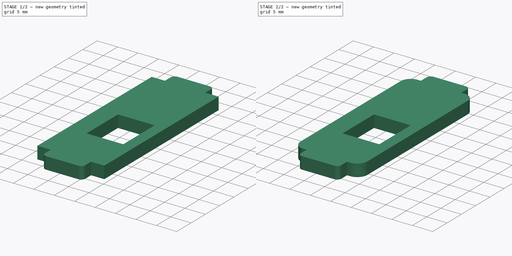
[diagram: build sequence overview — one tinted view per stage of 2, left to right]
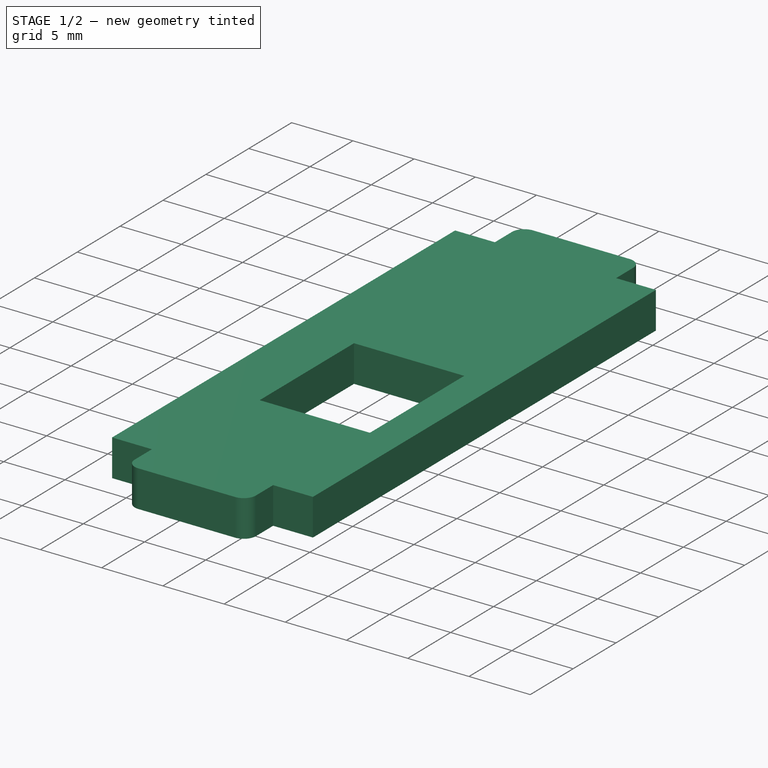
[diagram: stage 1 of 2 — iso view after this stage's code; geometry added in this stage tinted green]
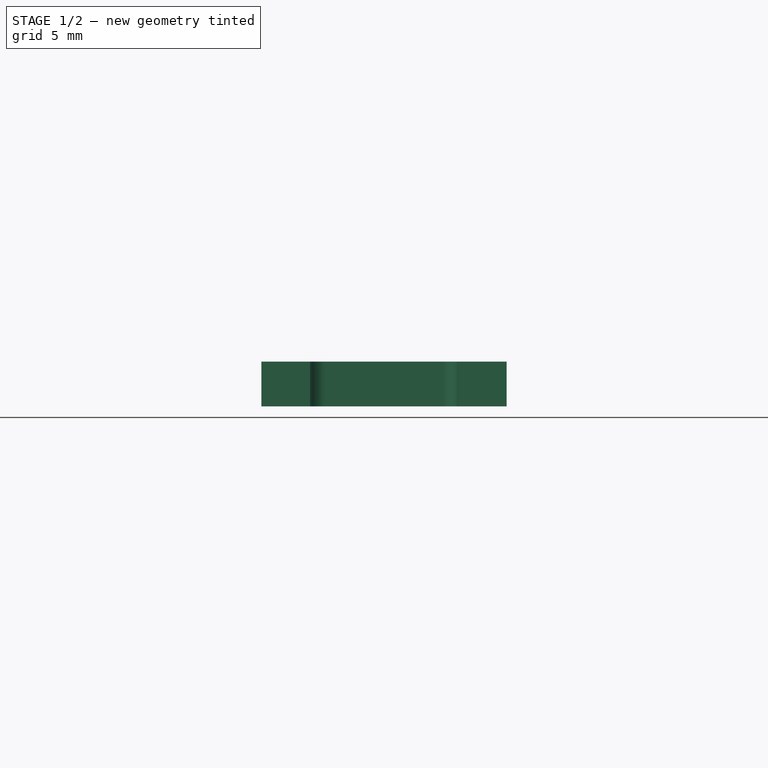
[diagram: stage 1 of 2 — front view after this stage's code; geometry added in this stage tinted green]
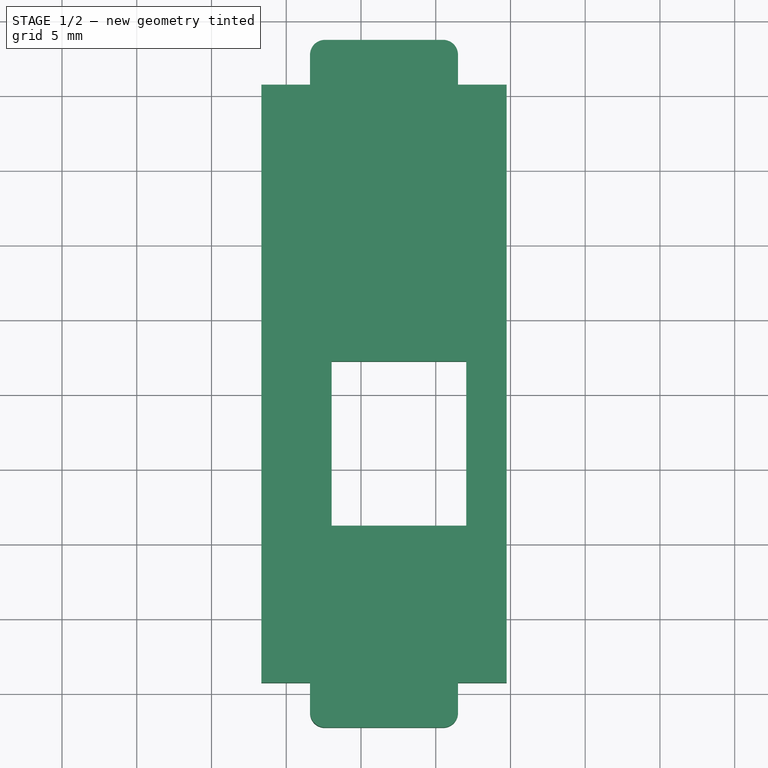
[diagram: stage 1 of 2 — top view after this stage's code; geometry added in this stage tinted green]
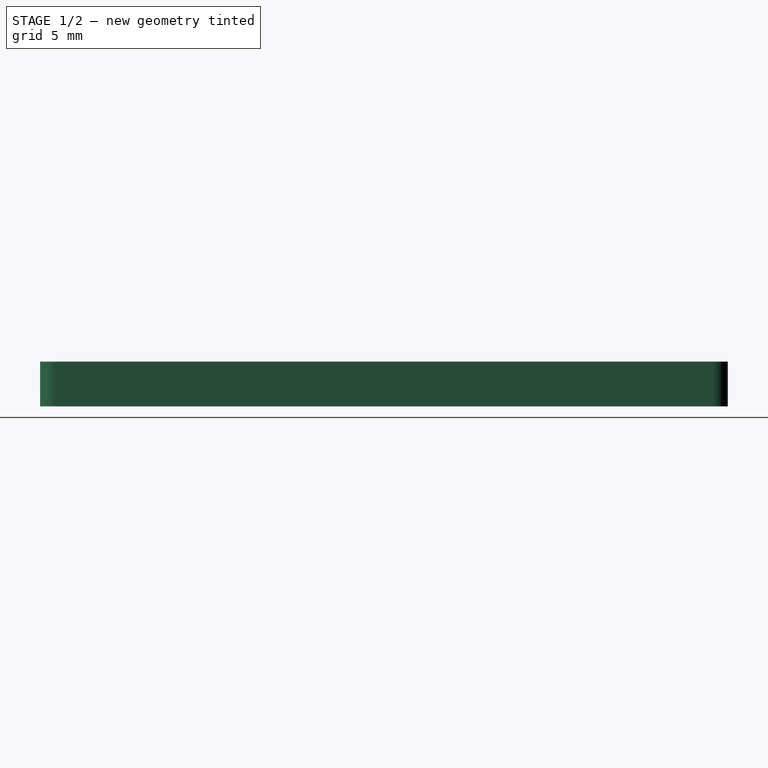
[diagram: stage 1 of 2 — right view after this stage's code; geometry added in this stage tinted green]
FCSTD DOCUMENT
Label: weather_kit_side_right2
objects: Part::Fillet×2, Sketcher::SketchObject×1, PartDesign::Pad×1, Drawing::FeatureViewPart×1, Drawing::FeaturePage×1
note: 5 computed .brp shape members not serialized (recipe doc carries the construction recipe); baked Part::Feature solids carry a one-line shape summary decoded from their .brp

FEATURE [Sketcher::SketchObject] Sketch
  sketch-geometry (16):
    g0: LineSegment StartX=39.7402 StartY=35.7314 StartZ=0 EndX=39.7402 EndY=-4.26859 EndZ=0
    g1: LineSegment StartX=26.5902 StartY=38.7314 StartZ=0 EndX=36.4902 EndY=38.7314 EndZ=0
    g2: LineSegment StartX=36.4902 StartY=38.7314 StartZ=0 EndX=36.4902 EndY=35.7314 EndZ=0
    g3: LineSegment StartX=26.5902 StartY=35.7314 StartZ=0 EndX=26.5902 EndY=38.7314 EndZ=0
    g4: LineSegment StartX=36.4902 StartY=-4.26859 StartZ=0 EndX=36.4902 EndY=-7.26859 EndZ=0
    g5: LineSegment StartX=36.4902 StartY=-7.26859 StartZ=0 EndX=26.5902 EndY=-7.26859 EndZ=0
    g6: LineSegment StartX=26.5902 StartY=-7.26859 StartZ=0 EndX=26.5902 EndY=-4.26859 EndZ=0
    g7: LineSegment StartX=26.5902 StartY=-4.26859 StartZ=0 EndX=23.3402 EndY=-4.26859 EndZ=0
    g8: LineSegment StartX=36.4902 StartY=-4.26859 StartZ=0 EndX=39.7402 EndY=-4.26859 EndZ=0
    g9: LineSegment StartX=36.4902 StartY=35.7314 StartZ=0 EndX=39.7402 EndY=35.7314 EndZ=0
    g10: LineSegment StartX=23.3402 StartY=35.7314 StartZ=0 EndX=26.5902 EndY=35.7314 EndZ=0
    g11: LineSegment StartX=23.3402 StartY=-4.26859 StartZ=0 EndX=23.3402 EndY=35.7314 EndZ=0
    g12: LineSegment StartX=28.0402 StartY=17.2314 StartZ=0 EndX=37.0402 EndY=17.2314 EndZ=0
    g13: LineSegment StartX=37.0402 StartY=17.2314 StartZ=0 EndX=37.0402 EndY=6.23141 EndZ=0
    g14: LineSegment StartX=37.0402 StartY=6.23141 StartZ=0 EndX=28.0402 EndY=6.23141 EndZ=0
    g15: LineSegment StartX=28.0402 StartY=6.23141 StartZ=0 EndX=28.0402 EndY=17.2314 EndZ=0
  constraints (46):
    c: Vertical(g0)
    c: DistanceY(g0) = -40
    c: Coincident(g1,g2)
    c: Coincident(g3,g1)
    c: Horizontal(g1)
    c: Vertical(g2)
    c: Vertical(g3)
    c: Coincident(g4,g5)
    c: Coincident(g5,g6)
    c: Horizontal(g5)
    c: Vertical(g4)
    c: Vertical(g6)
    c: DistanceY(g4) = -3
    c: DistanceY(g2) = -3
    c: DistanceX(g1) = 9.9
    c: DistanceX(g5) = -9.9
    c: DistanceY(g6,g0) = 0
    c: DistanceY(g2,g0) = 0
    c: DistanceX(g2,g0) = 3.25
    c: DistanceX(g0,g4) = -3.25
    c: Coincident(g7,g6)
    c: Horizontal(g7)
    c: Coincident(g8,g4)
    c: Coincident(g8,g0)
    c: Horizontal(g8)
    c: Coincident(g9,g2)
    c: Coincident(g9,g0)
    c: Coincident(g10,g3)
    c: Horizontal(g10)
    c: DistanceX(g7) = -3.25
    c: Coincident(g11,g7)
    c: Coincident(g11,g10)
    c: Vertical(g11)
    c: Coincident(g12,g13)
    c: Coincident(g13,g14)
    c: Coincident(g14,g15)
    c: Coincident(g15,g12)
    c: Horizontal(g12)
    c: Horizontal(g14)
    c: Vertical(g13)
    c: Vertical(g15)
    c: DistanceY(g13) = -11
    c: DistanceX(g12) = 9
    c: DistanceY(g0,g13) = 10.5
    c: DistanceX(g13,g0) = 2.7
    c: DistanceY(g11) = 40
FEATURE [PartDesign::Pad] Pad
  Length = 3
  Length2 = 100
  Sketch = -> Sketch
  Type = 0
FEATURE [Part::Fillet] Fillet
  Base = -> Pad
  Edges = 4 edges r=1: [Edge8,Edge11,Edge23,Edge26]
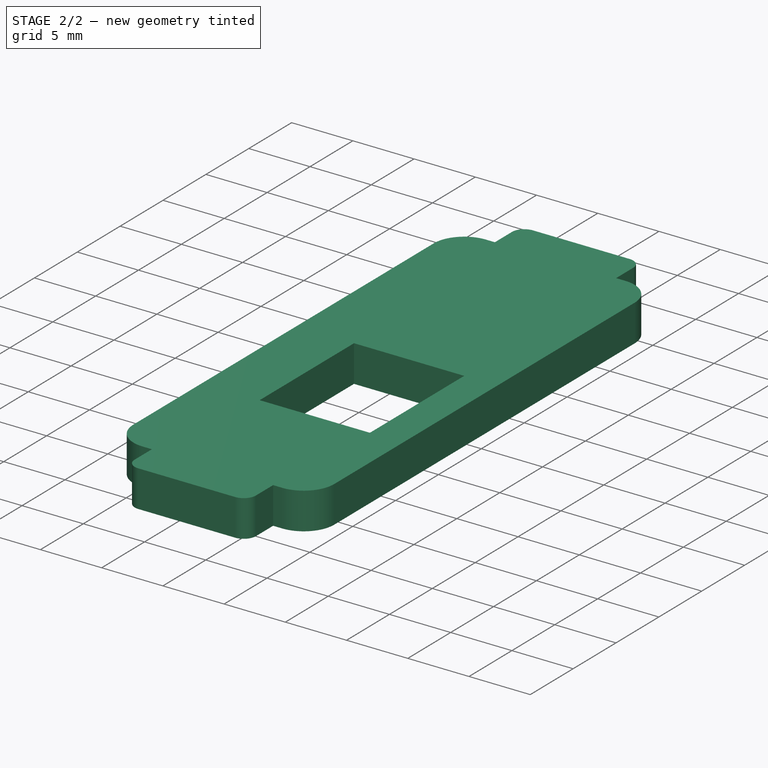
[diagram: stage 2 of 2 — iso view after this stage's code; geometry added in this stage tinted green]
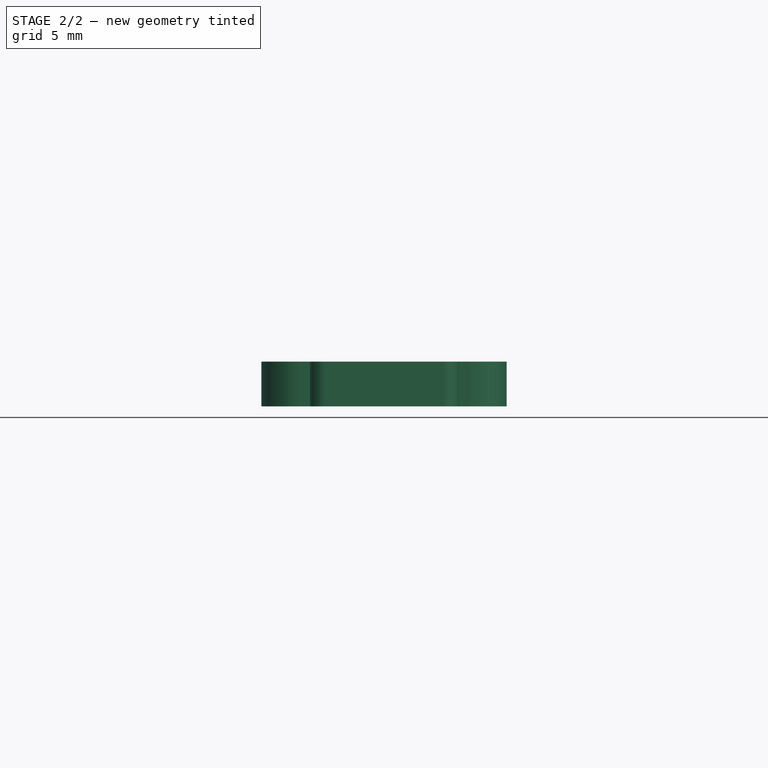
[diagram: stage 2 of 2 — front view after this stage's code; geometry added in this stage tinted green]
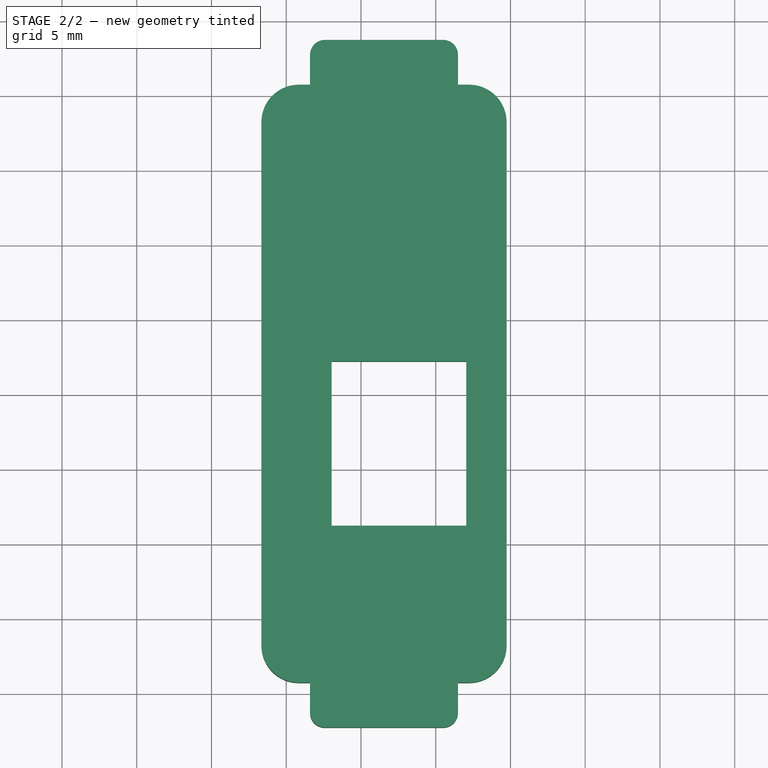
[diagram: stage 2 of 2 — top view after this stage's code; geometry added in this stage tinted green]
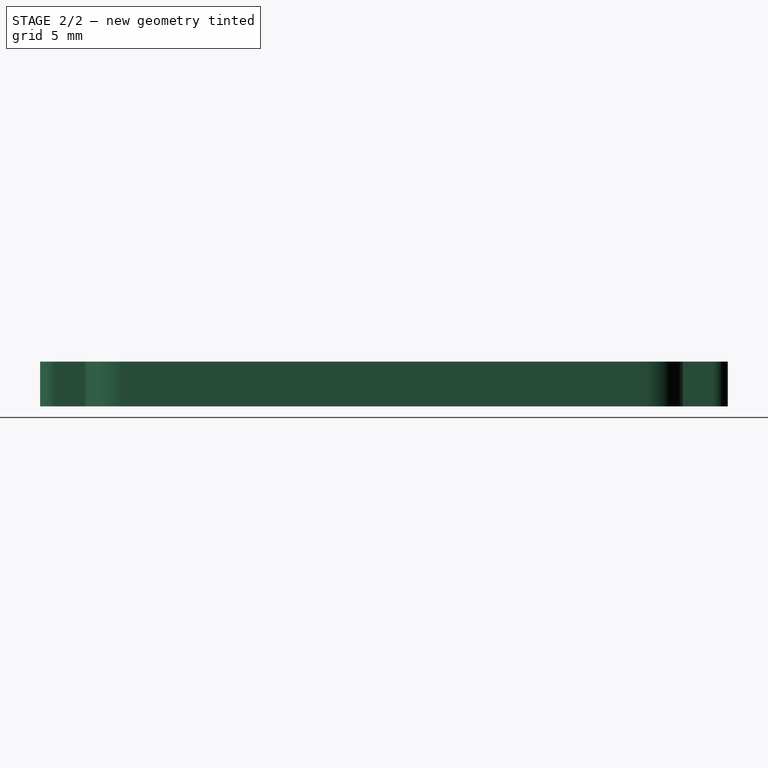
[diagram: stage 2 of 2 — right view after this stage's code; geometry added in this stage tinted green]
FEATURE [Part::Fillet] Fillet001
  Base = -> Fillet
  Edges = 4 edges r=2.5: [Edge26,Edge46,Edge51,Edge53]
  Placement = pos=(200,100,0) rot=(0,0,1;0rad)
FEATURE [Drawing::FeatureViewPart] View
  Direction = (0,0,1)
  LineWidth = 0.35
  Rotation = 0
  ShowHiddenLines = false
  ShowSmoothLines = false
  Source = -> Fillet001
  Tolerance = 0.05
  ViewResult = <g id="View"    transform="rotate(0,10,10) translate(10,10) scale(1,1)"   > <g   stroke="rgb(0, 0, 0)"    stroke-width="0.35"    stroke-linecap="butt"    stroke-linejoin="miter"    fill="none"   > <path id= "1" d=" M 236.49 135.731 L 237.24 135.731 " /> <path d="M237.24 135.731 A2.5 2.5 0 0 0 239.74 133.231" /><path id= "3" d=" M 236.49 135.731 L 236.49 137.731 " /> <path id= "4" d=" M 239.74 98.2314 L 239.74 133.231 " /> <path d="M236.49 137.731 A1 1 0 0 1 235.49 138.731" /><path d="M239.74 98.2314 A2.5 2.5 0 0 0 237.24 95.7314" /><path id= "7" d=" M 235.49 138.731 L 227.59 138.731 " /> <path id= "8" d=" M 236.49 95.7314 L 237.24 95.7314 " /> <path d="M227.59 138.731 A1 1 0 0 1 226.59 137.731" /><path id= "10" d=" M 236.49 93.7314 L 236.49 95.7314 " /> <path id= "11" d=" M 226.59 137.731 L 226.59 135.731 " /> <path d="M236.49 93.7314 A1 1 0 0 0 235.49 92.7314" /><path id= "13" d=" M 226.59 135.731 L 225.84 135.731 " /> <path id= "14" d=" M 227.59 92.7314 L 235.49 92.7314 " /> <path d="M225.84 135.731 A2.5 2.5 0 0 1 223.34 133.231" /><path d="M227.59 92.7314 A1 1 0 0 0 226.59 93.7314" /><path id= "17" d=" M 223.34 133.231 L 223.34 98.2314 " /> <path id= "18" d=" M 226.59 95.7314 L 226.59 93.7314 " /> <path d="M223.34 98.2314 A2.5 2.5 0 0 1 225.84 95.7314" /><path id= "20" d=" M 225.84 95.7314 L 226.59 95.7314 " /> <path id= "21" d=" M 228.04 114.231 L 237.04 114.231 " /> <path id= "22" d=" M 237.04 114.231 L 237.04 125.231 " /> <path id= "23" d=" M 237.04 125.231 L 228.04 125.231 " /> <path id= "24" d=" M 228.04 125.231 L 228.04 114.231 " /> </g> </g> 
  X = 10
  Y = 10
FEATURE [Drawing::FeaturePage] Page
  EditableTexts = AUTHOR NAME | CREATION DATE | SUPERVISOR NAME | CHECK DATE | SCALE | WEIGHT | NUMBER | SHEET | TITLE | SUBTITLE
  Group = -> [View]
  Template = <path>
note: 1 file-system path scrubbed to <path> (originals preserved in the JSON sidecar)
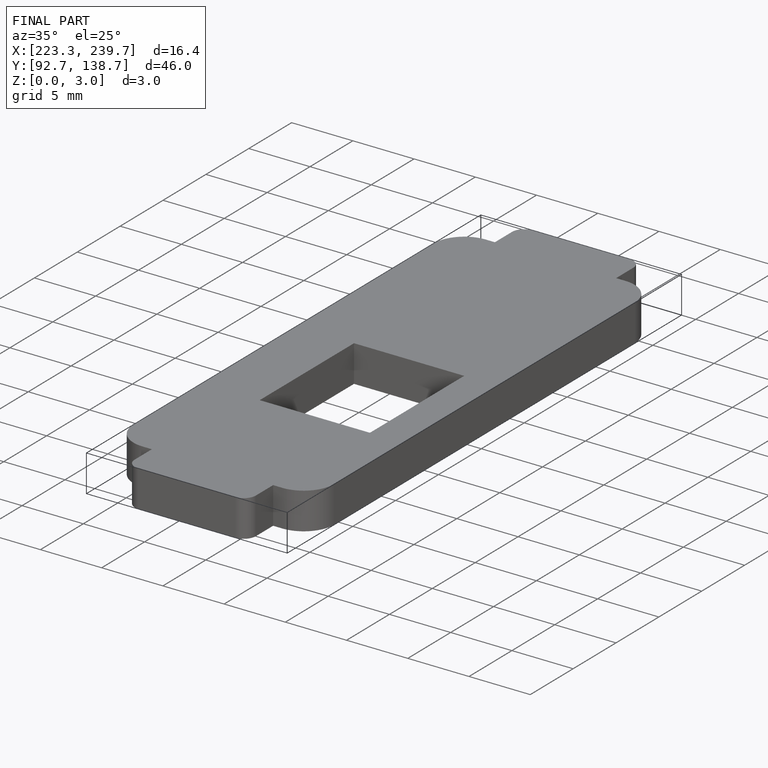
[diagram: finished part — iso view with bounding-box wireframe]
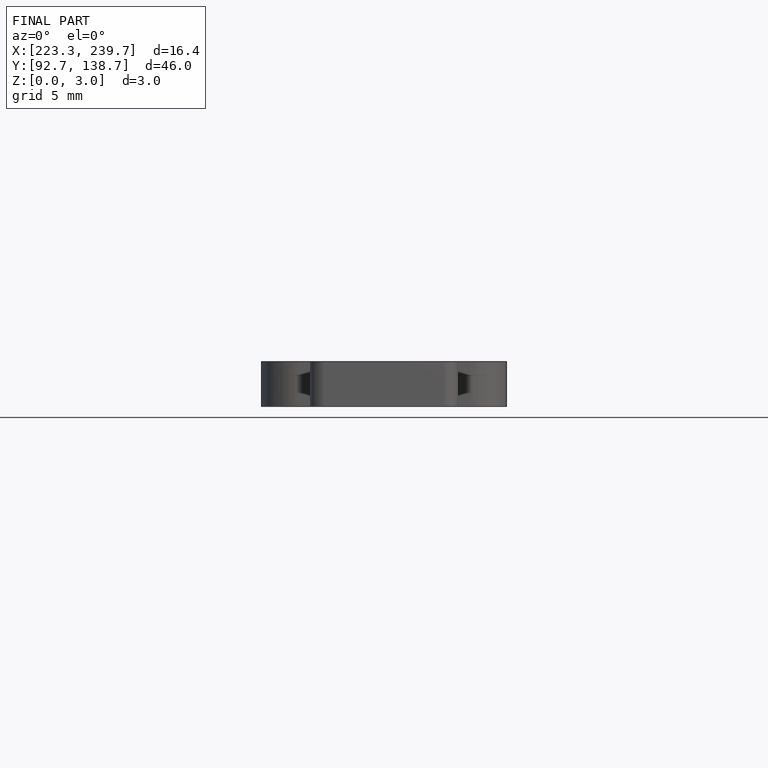
[diagram: finished part — front view with bounding-box wireframe]
